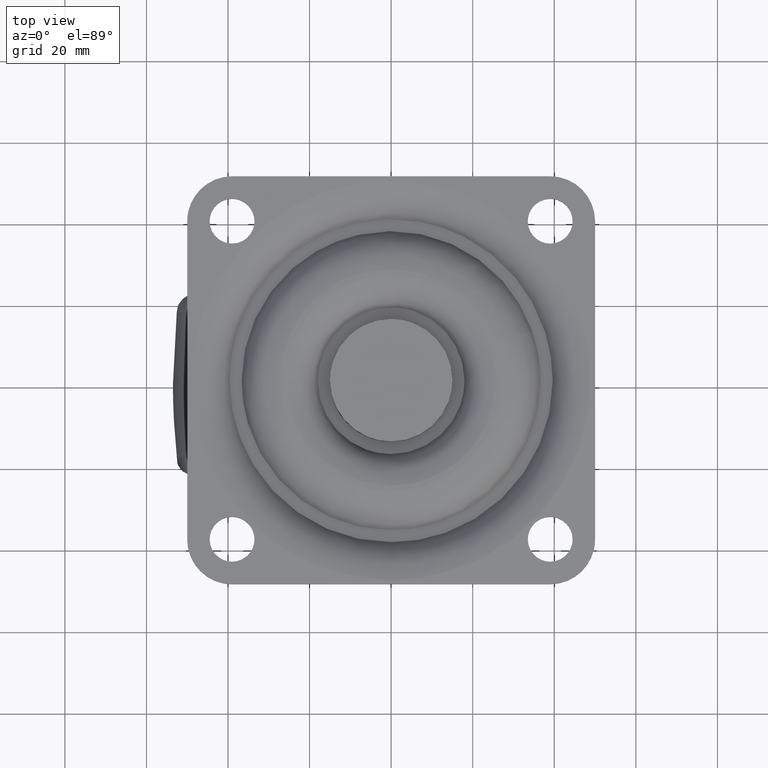
[diagram: clean part render]
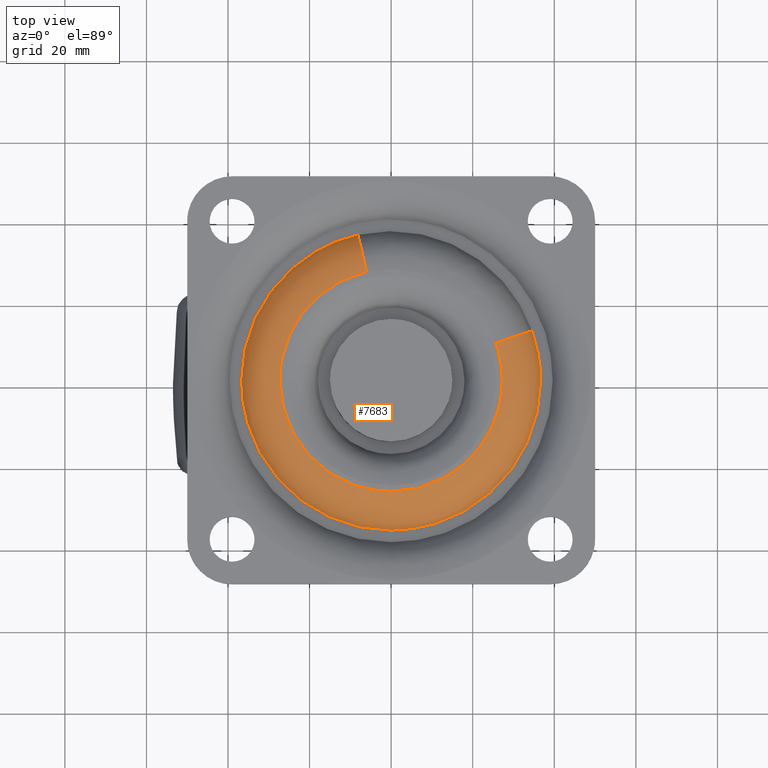
[diagram: same view with one face highlighted and labeled with its STEP entity id]
A machine part, top view. The second image highlights one B-rep face of the part: STEP entity #7683.
In plain terms, the highlighted face is a freeform B-spline surface patch.
Its self-contained STEP definition (entity closure, byte-faithful):
#7481=CARTESIAN_POINT('',(-8.165132494221332,35.911099540899173,-7.034442348361569));
#7482=CARTESIAN_POINT('',(-10.245310677530934,35.438127933361301,-7.034442348361567));
#7483=CARTESIAN_POINT('',(-12.256964655658280,34.728133786808961,-7.034442348361566));
#7484=CARTESIAN_POINT('',(-46.985098442467240,22.471169131150681,-7.034442348361564));
#7485=CARTESIAN_POINT('',(-34.728133786808961,-12.256964655658280,-7.034442348361566));
#7486=CARTESIAN_POINT('',(-22.471169131150667,-46.985098442467240,-7.034442348361564));
#7487=CARTESIAN_POINT('',(12.256964655658280,-34.728133786808961,-7.034442348361566));
#7488=CARTESIAN_POINT('',(46.985098442467240,-22.471169131150681,-7.034442348361564));
#7489=CARTESIAN_POINT('',(34.728133786808961,12.256964655658280,-7.034442348361566));
#7490=CARTESIAN_POINT('',(-7.651626296176092,33.652646024569577,0.424214582337359));
#7491=CARTESIAN_POINT('',(-9.600981814829130,33.209419660252458,0.424214582337359));
#7492=CARTESIAN_POINT('',(-11.486122624086056,32.544077133877543,0.424214582337359));
#7493=CARTESIAN_POINT('',(-44.030199757963608,21.057954509791493,0.424214582337360));
#7494=CARTESIAN_POINT('',(-32.544077133877543,-11.486122624086056,0.424214582337359));
#7495=CARTESIAN_POINT('',(-21.057954509791475,-44.030199757963608,0.424214582337360));
#7496=CARTESIAN_POINT('',(11.486122624086063,-32.544077133877543,0.424214582337359));
#7497=CARTESIAN_POINT('',(44.030199757963608,-21.057954509791475,0.424214582337360));
#7498=CARTESIAN_POINT('',(32.544077133877543,11.486122624086061,0.424214582337359));
#7499=CARTESIAN_POINT('',(-5.922810702341297,26.049135742036107,-0.015890105932153));
#7500=CARTESIAN_POINT('',(-7.431727013938506,25.706052356553826,-0.015890105932153));
#7501=CARTESIAN_POINT('',(-8.890937347572699,25.191037942179523,-0.015890105932153));
#7502=CARTESIAN_POINT('',(-34.081975289752215,16.300100594606818,-0.015890105932153));
#7503=CARTESIAN_POINT('',(-25.191037942179523,-8.890937347572699,-0.015890105932153));
#7504=CARTESIAN_POINT('',(-16.300100594606818,-34.081975289752215,-0.015890105932153));
#7505=CARTESIAN_POINT('',(8.890937347572704,-25.191037942179523,-0.015890105932153));
#7506=CARTESIAN_POINT('',(34.081975289752215,-16.300100594606818,-0.015890105932153));
#7507=CARTESIAN_POINT('',(25.191037942179523,8.890937347572704,-0.015890105932153));
#7515=(BOUNDED_SURFACE()B_SPLINE_SURFACE(2,2,((#7481,#7490,#7499),(#7482,#7491,#7500),(#7483,#7492,#7501),(#7484,#7493,#7502),(#7485,#7494,#7503),(#7486,#7495,#7504),(#7487,#7496,#7505),(#7488,#7497,#7506),(#7489,#7498,#7507)),.UNSPECIFIED.,.F.,.F.,.U.)B_SPLINE_SURFACE_WITH_KNOTS((3,2,2,2,3),(3,3),(0.0,4.881440394371053,65.899503515368849,126.917566636366600,187.935629757364410),(0.0,13.769111707186701),.UNSPECIFIED.)GEOMETRIC_REPRESENTATION_ITEM()RATIONAL_B_SPLINE_SURFACE(((0.880036777215592,0.694244725982777,0.881737021440785),(0.898138453968215,0.708524803750338,0.899873670903823),(0.919688065235373,0.725524893242665,0.921464916342485),(0.650317667504268,0.513023571931534,0.651574090971266),(0.919688065235373,0.725524893242665,0.921464916342485),(0.650317667504268,0.513023571931534,0.651574090971266),(0.919688065235373,0.725524893242665,0.921464916342485),(0.650317667504268,0.513023571931534,0.651574090971266),(0.919688065235373,0.725524893242665,0.921464916342485)))REPRESENTATION_ITEM('')SURFACE());
#7516=CARTESIAN_POINT('',(-6.047745811863400,26.598627182407029,-1.539344E-015));
#7517=VERTEX_POINT('',#7516);
#7518=CARTESIAN_POINT('',(-27.277503502402400,0.0,0.0));
#7519=VERTEX_POINT('',#7518);
#7520=CARTESIAN_POINT('',(-6.047745811863400,26.598627182407029,-1.539344E-015));
#7521=CARTESIAN_POINT('',(-7.680878104883483,26.227489042994559,-1.420928E-015));
#7522=CARTESIAN_POINT('',(-10.147436823454459,25.421637939422769,-1.242080E-015));
#7523=CARTESIAN_POINT('',(-13.198810130011889,23.918259977122251,-1.020829E-015));
#7524=CARTESIAN_POINT('',(-16.052955979257760,22.158801295603720,-8.138783E-016));
#7525=CARTESIAN_POINT('',(-18.876605154882689,19.844059355611201,-6.091389E-016));
#7526=CARTESIAN_POINT('',(-21.271896470905059,17.161191611688970,-4.354593E-016));
#7527=CARTESIAN_POINT('',(-22.971670814217561,14.785146644405909,-3.122107E-016));
#7528=CARTESIAN_POINT('',(-24.728919991495822,11.760626061138320,-1.847947E-016));
#7529=CARTESIAN_POINT('',(-26.177533443940039,8.094108621381031,-7.975749E-017));
#7530=CARTESIAN_POINT('',(-27.090256080576939,3.875840693336861,-1.357708E-017));
#7531=CARTESIAN_POINT('',(-27.277567572262889,1.339809432935901,4.645628E-021));
#7532=CARTESIAN_POINT('',(-27.277503502402400,0.0,0.0));
#7533=B_SPLINE_CURVE_WITH_KNOTS('',3,(#7520,#7521,#7522,#7523,#7524,#7525,#7526,#7527,#7528,#7529,#7530,#7531,#7532),.UNSPECIFIED.,.F.,.U.,(4,1,1,1,1,1,1,1,1,1,4),(0.000000047887902,5.024277695300537,7.751740326886552,10.192116600974099,15.072842796131290,18.661584115403901,20.958421275363811,23.829442833849971,29.140828173021308,32.729599840593117,36.749022407743247),.UNSPECIFIED.);
#7534=EDGE_CURVE('',#7517,#7519,#7533,.T.);
#7535=ORIENTED_EDGE('',*,*,#7534,.F.);
#7536=CARTESIAN_POINT('',(-8.124630916404209,35.732988037884333,-6.499999999940681));
#7537=VERTEX_POINT('',#7536);
#7538=CARTESIAN_POINT('',(-8.124630916404209,35.732988037884333,-6.499999999940681));
#7539=CARTESIAN_POINT('',(-8.078060908704050,35.528168207272707,-5.937656664418261));
#7540=CARTESIAN_POINT('',(-7.962367355763294,35.019335697091037,-4.850991697934406));
#7541=CARTESIAN_POINT('',(-7.735193097636632,34.020199227692672,-3.438806565955400));
#7542=CARTESIAN_POINT('',(-7.468436534374395,32.846975584254110,-2.266365889466247));
#7543=CARTESIAN_POINT('',(-7.209472943398082,31.708026259019459,-1.447686311925644));
#7544=CARTESIAN_POINT('',(-6.935524794464379,30.503173259393972,-0.806543950453680));
#7545=CARTESIAN_POINT('',(-6.566072018784074,28.878280787091612,-0.196834707588464));
#7546=CARTESIAN_POINT('',(-6.250896228015825,27.492104248190230,0.000346862299047));
#7547=CARTESIAN_POINT('',(-6.047745811863400,26.598627182407029,-1.539344E-015));
#7548=B_SPLINE_CURVE_WITH_KNOTS('',3,(#7538,#7539,#7540,#7541,#7542,#7543,#7544,#7545,#7546,#7547),.UNSPECIFIED.,.F.,.U.,(4,1,1,1,1,1,1,4),(0.000000066379526,1.800871645484586,3.601778313107660,5.213100985428059,6.824392619006557,7.867020433699661,9.383574571919901,12.132297642810050),.UNSPECIFIED.);
#7549=EDGE_CURVE('',#7537,#7517,#7548,.T.);
#7550=ORIENTED_EDGE('',*,*,#7549,.F.);
#7551=CARTESIAN_POINT('',(-36.645000500000002,0.0,-6.500000000000000));
#7552=VERTEX_POINT('',#7551);
#7553=CARTESIAN_POINT('',(-36.645000500000002,0.0,-6.500000000000000));
#7554=CARTESIAN_POINT('',(-36.645393462190007,2.507062917209980,-6.500000000000009));
#7555=CARTESIAN_POINT('',(-36.287363348019881,5.978167045499439,-6.499999999999243));
#7556=CARTESIAN_POINT('',(-35.165006311700871,10.472114206073890,-6.499999999996923));
#7557=CARTESIAN_POINT('',(-33.971052648831233,13.940606611619600,-6.499999999994467));
#7558=CARTESIAN_POINT('',(-32.345280667599802,17.375546366463919,-6.499999999991012));
#7559=CARTESIAN_POINT('',(-30.226562566662949,20.831682550233719,-6.499999999986675));
#7560=CARTESIAN_POINT('',(-28.076102242561070,23.645480584095122,-6.499999999982166));
#7561=CARTESIAN_POINT('',(-25.261628872430201,26.651222489998890,-6.499999999976330));
#7562=CARTESIAN_POINT('',(-22.079322748532540,29.374022841807339,-6.499999999969698));
#7563=CARTESIAN_POINT('',(-18.467223944171060,31.734243645571429,-6.499999999962190));
#7564=CARTESIAN_POINT('',(-13.936581700957660,34.040935855797507,-6.499999999952803));
#7565=CARTESIAN_POINT('',(-10.506693367990129,35.191767305296217,-6.499999999945633));
#7566=CARTESIAN_POINT('',(-8.124630916404209,35.732988037884333,-6.499999999940681));
#7567=B_SPLINE_CURVE_WITH_KNOTS('',3,(#7553,#7554,#7555,#7556,#7557,#7558,#7559,#7560,#7561,#7562,#7563,#7564,#7565,#7566),.UNSPECIFIED.,.F.,.U.,(4,1,1,1,1,1,1,1,1,1,1,4),(0.000000042271353,7.521077724651626,10.413804200695351,13.885082997879991,18.513464229671801,21.791896754339081,26.034519719361001,29.120086814388479,34.134152947038643,38.569671175809908,42.040959308886087,49.369178685305812),.UNSPECIFIED.);
#7568=EDGE_CURVE('',#7552,#7537,#7567,.T.);
#7569=ORIENTED_EDGE('',*,*,#7568,.F.);
#7570=CARTESIAN_POINT('',(-0.000002097756319,-36.645000499999938,-6.500000000000000));
#7571=VERTEX_POINT('',#7570);
#7572=CARTESIAN_POINT('',(-0.000002097756319,-36.645000499999938,-6.500000000000000));
#7573=CARTESIAN_POINT('',(-2.548338193154866,-36.645428013463601,-6.499999999999965));
#7574=CARTESIAN_POINT('',(-6.895286497791931,-36.189624424551987,-6.500000000000082));
#7575=CARTESIAN_POINT('',(-11.875676629597271,-34.745256929690299,-6.499999999999918));
#7576=CARTESIAN_POINT('',(-15.691150803577059,-33.178494576091630,-6.500000000000093));
#7577=CARTESIAN_POINT('',(-18.880312206850761,-31.498942267537728,-6.499999999999953));
#7578=CARTESIAN_POINT('',(-22.601362241505289,-28.962791945814239,-6.499999999999982));
#7579=CARTESIAN_POINT('',(-25.705573917225738,-26.234871898620419,-6.500000000000121));
#7580=CARTESIAN_POINT('',(-28.567857762753881,-23.057224948016621,-6.499999999999896));
#7581=CARTESIAN_POINT('',(-30.687865376434878,-20.143041617479039,-6.500000000000046));
#7582=CARTESIAN_POINT('',(-32.576627192248253,-16.902289983348791,-6.499999999999991));
#7583=CARTESIAN_POINT('',(-33.961005730896723,-13.904166517904200,-6.500000000000006));
#7584=CARTESIAN_POINT('',(-35.213684535573272,-10.369043084756600,-6.500000000000008));
#7585=CARTESIAN_POINT('',(-36.317259578076651,-5.846053834636715,-6.499999999999959));
#7586=CARTESIAN_POINT('',(-36.645204967131278,-2.173565279810365,-6.500000000000080));
#7587=CARTESIAN_POINT('',(-36.645000500000002,0.0,-6.500000000000000));
#7588=B_SPLINE_CURVE_WITH_KNOTS('',3,(#7572,#7573,#7574,#7575,#7576,#7577,#7578,#7579,#7580,#7581,#7582,#7583,#7584,#7585,#7586,#7587),.UNSPECIFIED.,.F.,.U.,(4,1,1,1,1,1,1,1,1,1,1,1,1,4),(0.000000040960266,7.644919474682375,13.041372828798909,15.514739419792150,20.011764783738890,23.834254752455600,29.005785377910641,32.378555017578769,36.650734478689273,39.798670961117381,43.621145504258337,46.544221362194342,51.041255302155790,57.561921296272068),.UNSPECIFIED.);
#7589=EDGE_CURVE('',#7571,#7552,#7588,.T.);
#7590=ORIENTED_EDGE('',*,*,#7589,.F.);
#7591=CARTESIAN_POINT('',(36.645000500000002,0.0,-6.500000000000000));
#7592=VERTEX_POINT('',#7591);
#7593=CARTESIAN_POINT('',(36.645000500000002,0.0,-6.500000000000000));
#7594=CARTESIAN_POINT('',(36.645375964866552,-2.548336436123721,-6.500000000000014));
#7595=CARTESIAN_POINT('',(36.228940404672507,-6.520535865371792,-6.499999999999973));
#7596=CARTESIAN_POINT('',(34.921791332587397,-11.300170847360061,-6.500000000000020));
#7597=CARTESIAN_POINT('',(33.555995121882290,-14.873569470034971,-6.499999999999990));
#7598=CARTESIAN_POINT('',(31.945603600714769,-18.097470047828789,-6.499999999999945));
#7599=CARTESIAN_POINT('',(29.554078332649510,-21.823423861488241,-6.500000000000045));
#7600=CARTESIAN_POINT('',(26.720167488777609,-25.233651639967430,-6.499999999999859));
#7601=CARTESIAN_POINT('',(23.079422284386069,-28.594948040042269,-6.500000000000044));
#7602=CARTESIAN_POINT('',(19.033826031672380,-31.462908886401632,-6.499999999999988));
#7603=CARTESIAN_POINT('',(14.617016532834491,-33.720105312548583,-6.500000000000004));
#7604=CARTESIAN_POINT('',(9.946435587920194,-35.375159810137447,-6.500000000000001));
#7605=CARTESIAN_POINT('',(5.171541657736865,-36.401280556678287,-6.500000000000005));
#7606=CARTESIAN_POINT('',(1.723850208418676,-36.645081202773802,-6.499999999999997));
#7607=CARTESIAN_POINT('',(-0.000002097756319,-36.645000499999938,-6.500000000000000));
#7608=B_SPLINE_CURVE_WITH_KNOTS('',3,(#7593,#7594,#7595,#7596,#7597,#7598,#7599,#7600,#7601,#7602,#7603,#7604,#7605,#7606,#7607),.UNSPECIFIED.,.F.,.U.,(4,1,1,1,1,1,1,1,1,1,1,1,4),(0.000000040789885,7.644919788570945,11.917115649456170,14.840185713233691,19.112371458418721,22.710002336489030,28.106455730938318,32.378556348446693,37.550154921733807,42.946591825933879,47.218775573153849,52.390370366890011,57.561923660935967),.UNSPECIFIED.);
#7609=EDGE_CURVE('',#7592,#7571,#7608,.T.);
#7610=ORIENTED_EDGE('',*,*,#7609,.F.);
#7611=CARTESIAN_POINT('',(34.555899276761210,12.196149183065110,-6.500006137897774));
#7612=VERTEX_POINT('',#7611);
#7613=CARTESIAN_POINT('',(34.555899276761210,12.196149183065110,-6.500006137897774));
#7614=CARTESIAN_POINT('',(35.267308698092513,10.181055339677220,-6.500005093099215));
#7615=CARTESIAN_POINT('',(36.303561796661782,6.151861773093711,-6.500003036362189));
#7616=CARTESIAN_POINT('',(36.645138142531707,2.007476614879550,-6.500000981483672));
#7617=CARTESIAN_POINT('',(36.645000500000002,0.0,-6.500000000000000));
#7618=B_SPLINE_CURVE_WITH_KNOTS('',3,(#7613,#7614,#7615,#7616,#7617),.UNSPECIFIED.,.F.,.U.,(4,1,4),(2.626361E-009,6.410935571425568,12.433345291989751),.UNSPECIFIED.);
#7619=EDGE_CURVE('',#7612,#7592,#7618,.T.);
#7620=ORIENTED_EDGE('',*,*,#7619,.F.);
#7621=CARTESIAN_POINT('',(25.722427647083979,9.078486292279923,-1.472977E-015));
#7622=VERTEX_POINT('',#7621);
#7623=CARTESIAN_POINT('',(34.555899276761210,12.196149183065110,-6.500006137897774));
#7624=CARTESIAN_POINT('',(34.284955548167083,12.100523764345450,-5.730422896350904));
#7625=CARTESIAN_POINT('',(33.562765418945112,11.845637087755080,-4.262811890157570));
#7626=CARTESIAN_POINT('',(32.105961705575282,11.331477404630711,-2.526706811688247));
#7627=CARTESIAN_POINT('',(30.717657351967041,10.841492857653069,-1.474072779944414));
#7628=CARTESIAN_POINT('',(29.470282696146789,10.401247313454499,-0.795679265029365));
#7629=CARTESIAN_POINT('',(27.927001641255998,9.856564921005685,-0.196770634098755));
#7630=CARTESIAN_POINT('',(26.586464723021450,9.383438185423865,0.000293477065400));
#7631=CARTESIAN_POINT('',(25.722427647083979,9.078486292279923,-1.472977E-015));
#7632=B_SPLINE_CURVE_WITH_KNOTS('',3,(#7623,#7624,#7625,#7626,#7627,#7628,#7629,#7630,#7631),.UNSPECIFIED.,.F.,.U.,(4,1,1,1,1,1,4),(0.000000066382491,2.464371938697777,4.928754772106580,6.919200460333341,7.867024682106112,9.383579639328397,12.132304194608970),.UNSPECIFIED.);
#7633=EDGE_CURVE('',#7612,#7622,#7632,.T.);
#7634=ORIENTED_EDGE('',*,*,#7633,.T.);
#7635=CARTESIAN_POINT('',(27.277503502402400,0.0,0.0));
#7636=VERTEX_POINT('',#7635);
#7637=CARTESIAN_POINT('',(27.277503502402400,0.0,0.0));
#7638=CARTESIAN_POINT('',(27.277536146395470,1.205083581552374,3.092058E-020));
#7639=CARTESIAN_POINT('',(27.072776998115462,4.290100816529897,-1.939181E-016));
#7640=CARTESIAN_POINT('',(26.348418668289270,7.305809099893434,-8.800345E-016));
#7641=CARTESIAN_POINT('',(25.722427647083979,9.078486292279923,-1.472977E-015));
#7642=B_SPLINE_CURVE_WITH_KNOTS('',3,(#7637,#7638,#7639,#7640,#7641),.UNSPECIFIED.,.F.,.U.,(4,1,4),(2.907237E-009,3.615259229831285,9.255049736571774),.UNSPECIFIED.);
#7643=EDGE_CURVE('',#7636,#7622,#7642,.T.);
#7644=ORIENTED_EDGE('',*,*,#7643,.F.);
#7645=CARTESIAN_POINT('',(0.000001600492947,-27.277503502402361,0.0));
#7646=VERTEX_POINT('',#7645);
#7647=CARTESIAN_POINT('',(0.000001600492947,-27.277503502402361,0.0));
#7648=CARTESIAN_POINT('',(1.785328599398316,-27.277765253935819,0.0));
#7649=CARTESIAN_POINT('',(4.295806602036880,-27.030097678105822,0.0));
#7650=CARTESIAN_POINT('',(7.932866503990637,-26.154506469771391,0.0));
#7651=CARTESIAN_POINT('',(11.407838175299011,-24.911394246110721,0.0));
#7652=CARTESIAN_POINT('',(15.181987134437160,-22.818977395797418,0.0));
#7653=CARTESIAN_POINT('',(18.326568127617310,-20.301992064146791,0.0));
#7654=CARTESIAN_POINT('',(20.971326854987321,-17.574875017765379,0.0));
#7655=CARTESIAN_POINT('',(23.329373055025190,-14.375145740516430,0.0));
#7656=CARTESIAN_POINT('',(25.253901742258979,-10.580603688079290,0.0));
#7657=CARTESIAN_POINT('',(26.341340683863262,-7.288632627889756,0.0));
#7658=CARTESIAN_POINT('',(27.080420297087169,-3.849521217654023,0.0));
#7659=CARTESIAN_POINT('',(27.277660074534548,-1.562156069844526,0.0));
#7660=CARTESIAN_POINT('',(27.277503502402400,0.0,0.0));
#7661=B_SPLINE_CURVE_WITH_KNOTS('',3,(#7647,#7648,#7649,#7650,#7651,#7652,#7653,#7654,#7655,#7656,#7657,#7658,#7659,#7660),.UNSPECIFIED.,.F.,.U.,(4,1,1,1,1,1,1,1,1,1,1,4),(0.000000064080076,5.355909443330724,7.531766532053766,11.213987237723160,16.402573340433040,20.419536518575860,23.264819524937860,27.783898577558858,32.302974980909482,35.985179725219162,38.161036483770232,42.847468618781342),.UNSPECIFIED.);
#7662=EDGE_CURVE('',#7646,#7636,#7661,.T.);
#7663=ORIENTED_EDGE('',*,*,#7662,.F.);
#7664=CARTESIAN_POINT('',(-27.277503502402400,0.0,0.0));
#7665=CARTESIAN_POINT('',(-27.277551237141669,-1.227390707301140,0.0));
#7666=CARTESIAN_POINT('',(-27.115299886605069,-3.626379846918916,0.0));
#7667=CARTESIAN_POINT('',(-26.306966458357788,-7.626738182007187,0.0));
#7668=CARTESIAN_POINT('',(-24.784387795028330,-11.723082392237099,0.0));
#7669=CARTESIAN_POINT('',(-22.488916439919830,-15.633780162003870,0.0));
#7670=CARTESIAN_POINT('',(-19.969138489279079,-18.704060216080912,0.0));
#7671=CARTESIAN_POINT('',(-17.430059285923122,-21.062687434556270,0.0));
#7672=CARTESIAN_POINT('',(-14.679980772606770,-23.076251796106479,0.0));
#7673=CARTESIAN_POINT('',(-11.158115224762700,-25.028993485423928,0.0));
#7674=CARTESIAN_POINT('',(-7.671671607216789,-26.264407635181719,0.0));
#7675=CARTESIAN_POINT('',(-3.793723254905922,-27.085236648180739,0.0));
#7676=CARTESIAN_POINT('',(-1.562152626123372,-27.277643210159152,0.0));
#7677=CARTESIAN_POINT('',(0.000001600492947,-27.277503502402361,0.0));
#7678=B_SPLINE_CURVE_WITH_KNOTS('',3,(#7664,#7665,#7666,#7667,#7668,#7669,#7670,#7671,#7672,#7673,#7674,#7675,#7676,#7677),.UNSPECIFIED.,.F.,.U.,(4,1,1,1,1,1,1,1,1,1,1,4),(0.000000063949365,3.682171248763233,7.197029268340785,12.218226226254220,16.737294385670751,20.754261286164009,24.101664560120749,27.114404556836590,30.963989587754050,36.152570039355282,38.161038090211647,42.847470422912700),.UNSPECIFIED.);
#7679=EDGE_CURVE('',#7519,#7646,#7678,.T.);
#7680=ORIENTED_EDGE('',*,*,#7679,.F.);
#7681=EDGE_LOOP('',(#7535,#7550,#7569,#7590,#7610,#7620,#7634,#7644,#7663,#7680));
#7682=FACE_OUTER_BOUND('',#7681,.T.);
#7683=ADVANCED_FACE('',(#7682),#7515,.T.);